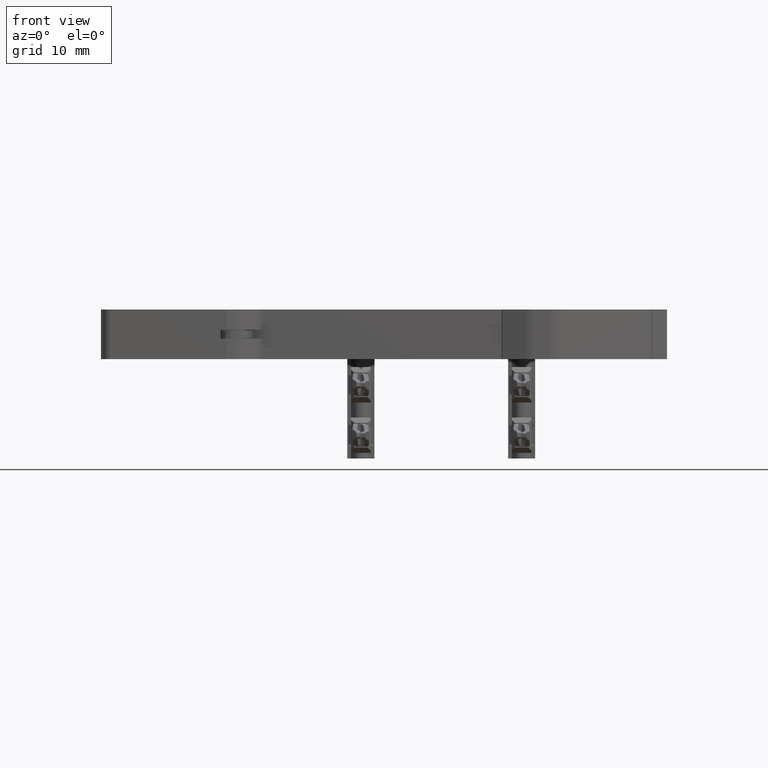
[diagram: clean part render]
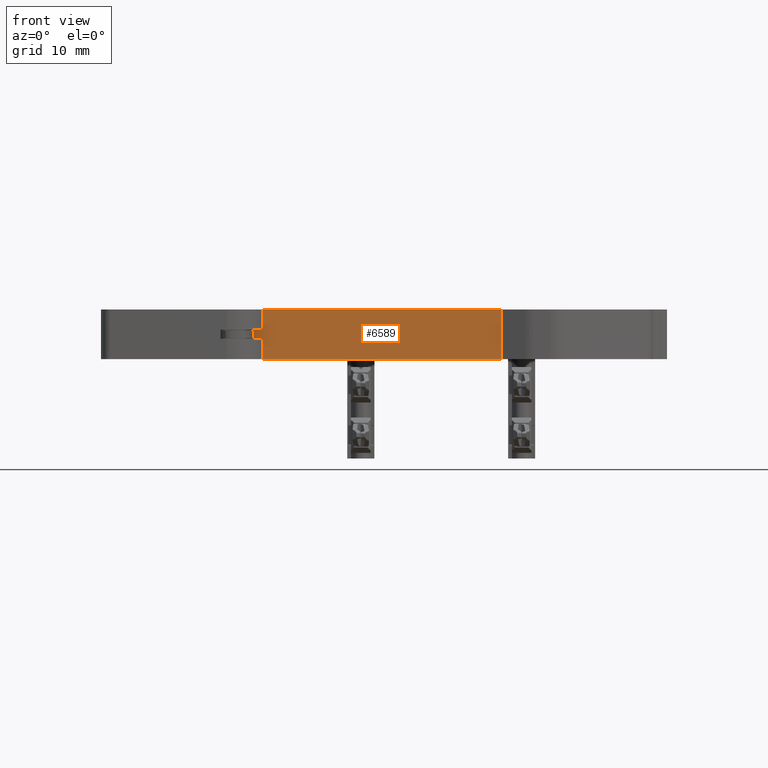
[diagram: same view with one face highlighted and labeled with its STEP entity id]
A machine part, front view. The second image highlights one B-rep face of the part: STEP entity #6589.
In plain terms, the highlighted planar face has unit normal (0, -1, 0).
Its self-contained STEP definition (entity closure, byte-faithful):
#5566 = EDGE_CURVE ( 'NONE', #7652, #7704, #29211, .T. ) ;
#5639 = EDGE_CURVE ( 'NONE', #7754, #7753, #29467, .T. ) ;
#5929 = EDGE_CURVE ( 'NONE', #7983, #7963, #33324, .T. ) ;
#6589 = ADVANCED_FACE ( 'NONE', ( #47299 ), #47264, .T. ) ;
#7652 = VERTEX_POINT ( 'NONE', #47105 ) ;
#7704 = VERTEX_POINT ( 'NONE', #48412 ) ;
#7753 = VERTEX_POINT ( 'NONE', #48467 ) ;
#7754 = VERTEX_POINT ( 'NONE', #48452 ) ;
#7963 = VERTEX_POINT ( 'NONE', #48635 ) ;
#7983 = VERTEX_POINT ( 'NONE', #48678 ) ;
#8404 = VERTEX_POINT ( 'NONE', #48909 ) ;
#8407 = VERTEX_POINT ( 'NONE', #48945 ) ;
#14133 = EDGE_CURVE ( 'NONE', #7753, #7963, #51836, .T. ) ;
#14158 = EDGE_CURVE ( 'NONE', #8407, #7754, #51963, .T. ) ;
#14239 = EDGE_CURVE ( 'NONE', #7983, #8404, #52207, .T. ) ;
#14257 = EDGE_CURVE ( 'NONE', #7652, #8404, #52257, .T. ) ;
#14305 = EDGE_CURVE ( 'NONE', #7704, #8407, #52364, .T. ) ;
#15580 = ORIENTED_EDGE ( 'NONE', *, *, #14305, .T. ) ;
#15600 = ORIENTED_EDGE ( 'NONE', *, *, #5639, .T. ) ;
#15601 = ORIENTED_EDGE ( 'NONE', *, *, #5929, .F. ) ;
#15604 = ORIENTED_EDGE ( 'NONE', *, *, #14133, .T. ) ;
#15609 = ORIENTED_EDGE ( 'NONE', *, *, #14257, .F. ) ;
#15649 = ORIENTED_EDGE ( 'NONE', *, *, #14239, .T. ) ;
#15674 = ORIENTED_EDGE ( 'NONE', *, *, #5566, .T. ) ;
#15683 = ORIENTED_EDGE ( 'NONE', *, *, #14158, .T. ) ;
#16203 = EDGE_LOOP ( 'NONE', ( #15604, #15601, #15649, #15609, #15674, #15580, #15683, #15600 ) ) ;
#26084 = VECTOR ( 'NONE', #29240, 1000.000000000000000 ) ;
#29211 = LINE ( 'NONE', #29239, #26084 ) ;
#29239 = CARTESIAN_POINT ( 'NONE',  ( 1911.244891860270600, 413.9487872509735100, -20.23331466679949400 ) ) ;
#29240 = DIRECTION ( 'NONE',  ( 0.0000000000000000000, 0.0000000000000000000, -1.000000000000000000 ) ) ;
#29443 = DIRECTION ( 'NONE',  ( 1.000000000000000000, 0.0000000000000000000, 0.0000000000000000000 ) ) ;
#29459 = CARTESIAN_POINT ( 'NONE',  ( 1910.725405354886600, 413.9487872509735100, -2.899999999999999900 ) ) ;
#29467 = LINE ( 'NONE', #29459, #30022 ) ;
#30022 = VECTOR ( 'NONE', #29443, 1000.000000000000000 ) ;
#30508 = VECTOR ( 'NONE', #33352, 1000.000000000000000 ) ;
#33324 = LINE ( 'NONE', #33326, #30508 ) ;
#33326 = CARTESIAN_POINT ( 'NONE',  ( 1910.725405354886600, 413.9487872509735100, 3.700000000000000200 ) ) ;
#33352 = DIRECTION ( 'NONE',  ( 1.000000000000000000, 0.0000000000000000000, 0.0000000000000000000 ) ) ;
#45955 = AXIS2_PLACEMENT_3D ( 'NONE', #47273, #47274, #47285 ) ;
#46710 = VECTOR ( 'NONE', #51950, 1000.000000000000000 ) ;
#46735 = VECTOR ( 'NONE', #51869, 1000.000000000000000 ) ;
#46838 = VECTOR ( 'NONE', #52253, 1000.000000000000000 ) ;
#46853 = VECTOR ( 'NONE', #52210, 1000.000000000000000 ) ;
#46929 = VECTOR ( 'NONE', #52390, 1000.000000000000000 ) ;
#47105 = CARTESIAN_POINT ( 'NONE',  ( 1911.244891860270600, 413.9487872509735100, 1.000000000000000000 ) ) ;
#47264 = PLANE ( 'NONE',  #45955 ) ;
#47273 = CARTESIAN_POINT ( 'NONE',  ( 1910.725405354886600, 413.9487872509735100, -39.61111759534314600 ) ) ;
#47274 = DIRECTION ( 'NONE',  ( 0.0000000000000000000, -1.000000000000000000, 0.0000000000000000000 ) ) ;
#47285 = DIRECTION ( 'NONE',  ( 0.0000000000000000000, -0.0000000000000000000, -1.000000000000000000 ) ) ;
#47299 = FACE_OUTER_BOUND ( 'NONE', #16203, .T. ) ;
#48412 = CARTESIAN_POINT ( 'NONE',  ( 1911.244891860270600, 413.9487872509735100, -0.2000000000000000100 ) ) ;
#48452 = CARTESIAN_POINT ( 'NONE',  ( 1913.368496770784800, 413.9487872509735100, -2.899999999999999900 ) ) ;
#48467 = CARTESIAN_POINT ( 'NONE',  ( 1945.048630798400200, 413.9487872509735100, -2.899999999999999900 ) ) ;
#48635 = CARTESIAN_POINT ( 'NONE',  ( 1945.048630798400200, 413.9487872509735100, 3.700000000000000200 ) ) ;
#48678 = CARTESIAN_POINT ( 'NONE',  ( 1913.368496770784800, 413.9487872509735100, 3.700000000000000200 ) ) ;
#48909 = CARTESIAN_POINT ( 'NONE',  ( 1913.368496770785900, 413.9487872509735100, 1.000000000000000000 ) ) ;
#48945 = CARTESIAN_POINT ( 'NONE',  ( 1913.368496770785900, 413.9487872509735100, -0.2000000000000000100 ) ) ;
#51836 = LINE ( 'NONE', #51878, #46735 ) ;
#51869 = DIRECTION ( 'NONE',  ( 0.0000000000000000000, 0.0000000000000000000, 1.000000000000000000 ) ) ;
#51878 = CARTESIAN_POINT ( 'NONE',  ( 1945.048630798400200, 413.9487872509735100, 3.700000000000000200 ) ) ;
#51950 = DIRECTION ( 'NONE',  ( 0.0000000000000000000, 0.0000000000000000000, -1.000000000000000000 ) ) ;
#51959 = CARTESIAN_POINT ( 'NONE',  ( 1913.368496770784800, 413.9487872509735100, 3.700000000000000200 ) ) ;
#51963 = LINE ( 'NONE', #51959, #46710 ) ;
#52207 = LINE ( 'NONE', #52221, #46853 ) ;
#52210 = DIRECTION ( 'NONE',  ( 0.0000000000000000000, 0.0000000000000000000, -1.000000000000000000 ) ) ;
#52221 = CARTESIAN_POINT ( 'NONE',  ( 1913.368496770784800, 413.9487872509735100, 3.700000000000000200 ) ) ;
#52231 = CARTESIAN_POINT ( 'NONE',  ( 1908.940247034270000, 413.9487872509735100, 1.000000000000000000 ) ) ;
#52253 = DIRECTION ( 'NONE',  ( 1.000000000000000000, 0.0000000000000000000, 0.0000000000000000000 ) ) ;
#52257 = LINE ( 'NONE', #52231, #46838 ) ;
#52364 = LINE ( 'NONE', #52381, #46929 ) ;
#52381 = CARTESIAN_POINT ( 'NONE',  ( 1908.940247034270000, 413.9487872509735100, -0.2000000000000000100 ) ) ;
#52390 = DIRECTION ( 'NONE',  ( 1.000000000000000000, 0.0000000000000000000, 0.0000000000000000000 ) ) ;